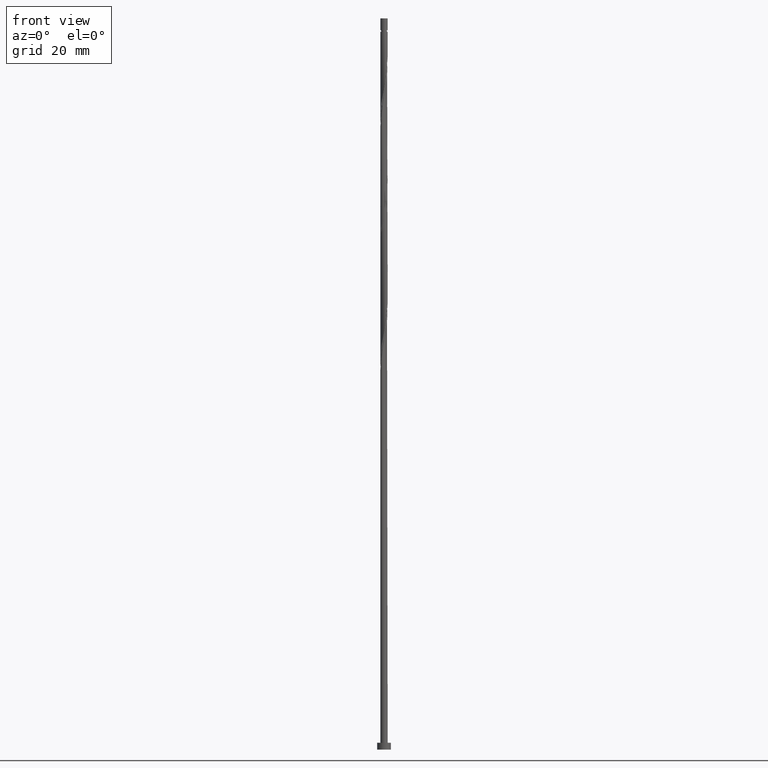
[diagram: clean part render]
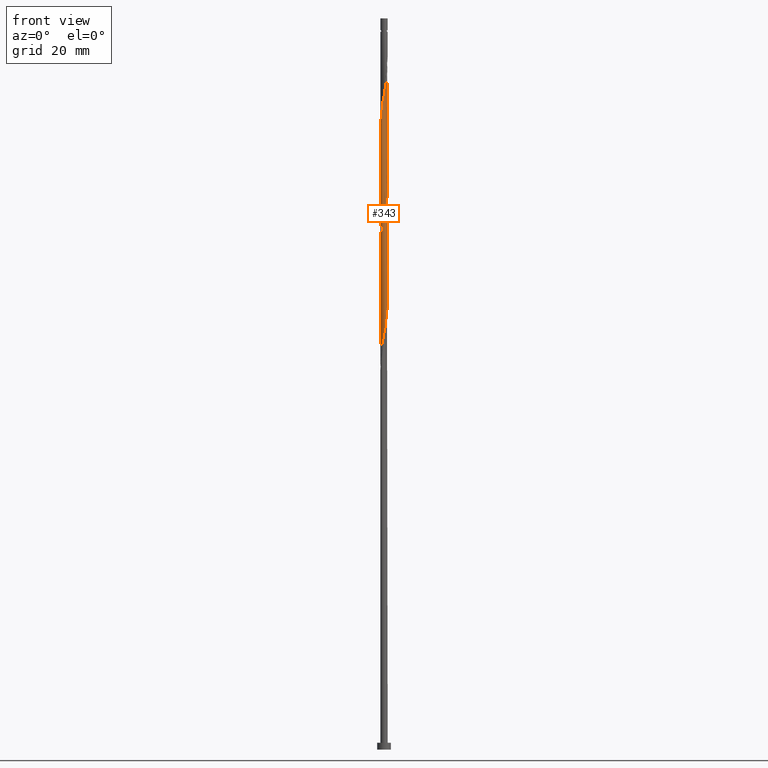
[diagram: same view with one face highlighted and labeled with its STEP entity id]
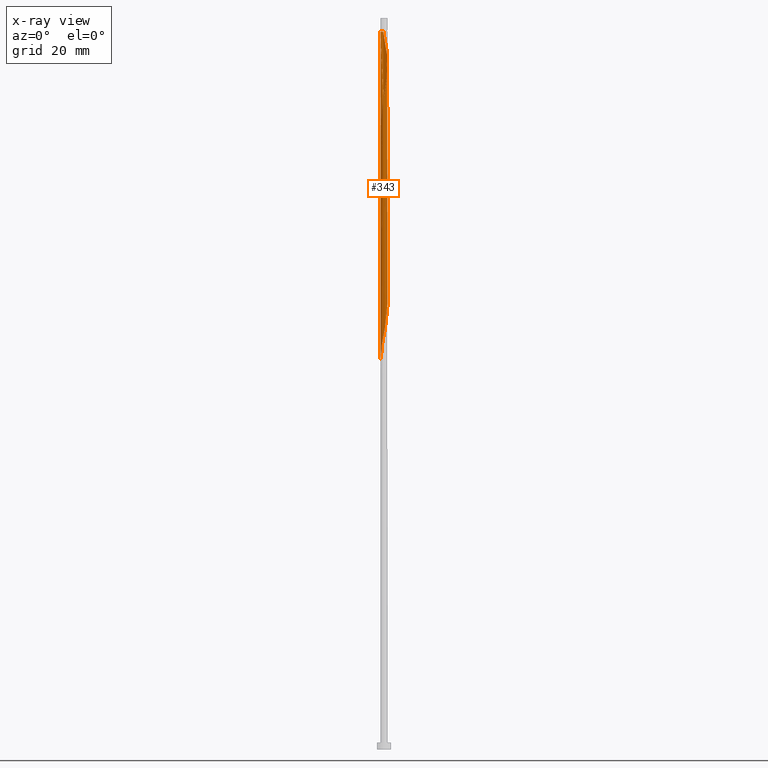
[diagram: x-ray of the same camera — body ghosted, the highlighted face saturated]
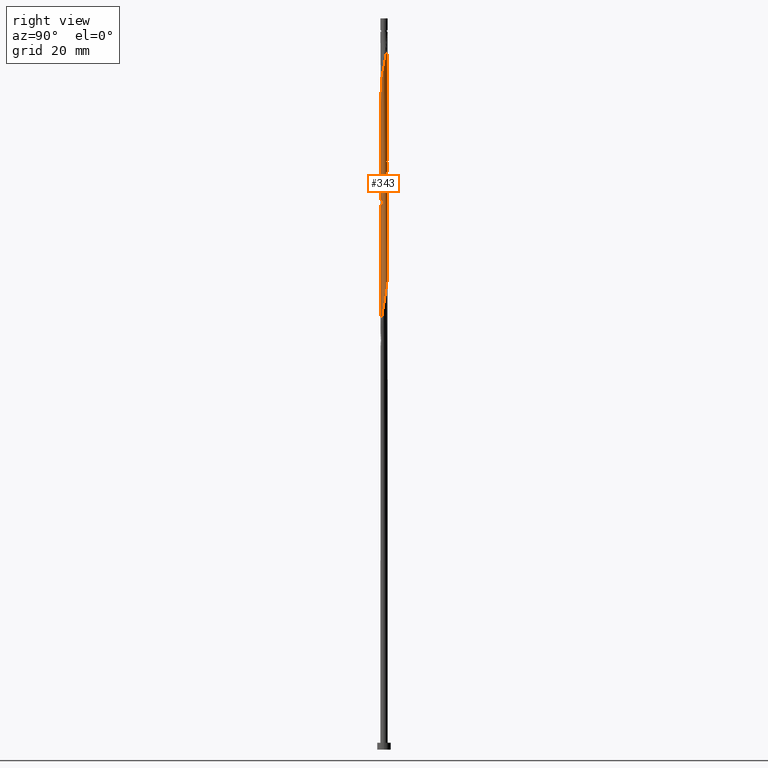
[diagram: same view with one face highlighted and labeled with its STEP entity id]
A machine part, front view. The second image highlights one B-rep face of the part: STEP entity #343.
The next image is the same camera in x-ray: the body ghosted, the highlighted face saturated — about 0% of this face is hidden behind the body in this view.
A second angle (right view) of the same face is appended — the face is thin or edge-on in the first view.
In plain terms, the highlighted cylindrical surface (bore or boss wall) has radius 0.8 mm, axis along (-0, -0, -1).
Its self-contained STEP definition (entity closure, byte-faithful):
#5 = CARTESIAN_POINT ( 'NONE',  ( 0.6967601788265364027, -0.3930970022801176800, 147.3917169308544715 ) ) ;
#41 = CIRCLE ( 'NONE', #417, 0.7999999999999928280 ) ;
#48 = LINE ( 'NONE', #526, #264 ) ;
#60 = ORIENTED_EDGE ( 'NONE', *, *, #1017, .F. ) ;
#70 = CARTESIAN_POINT ( 'NONE',  ( -0.7533637742433275664, 0.2691524171503026919, 109.8159593550969078 ) ) ;
#80 = CARTESIAN_POINT ( 'NONE',  ( 0.1591979899370601914, 0.7840000000000009184, 103.7553532944908596 ) ) ;
#90 = CARTESIAN_POINT ( 'NONE',  ( 0.2899365294310144447, -0.7456117011565069896, 92.84626238539993892 ) ) ;
#98 = CARTESIAN_POINT ( 'NONE',  ( -0.6402413624641632994, -0.4932759921154294402, 87.39171693085447146 ) ) ;
#101 = CARTESIAN_POINT ( 'NONE',  ( -0.5577882723393637887, -0.5734738383227867553, 114.6644442035817519 ) ) ;
#110 = CARTESIAN_POINT ( 'NONE',  ( -0.6967601788265365137, -0.3930970022801176245, 113.4523229914605338 ) ) ;
#116 = CARTESIAN_POINT ( 'NONE',  ( 0.5793709997158974501, 0.5635241355040887523, 152.8462623853999389 ) ) ;
#159 = DIRECTION ( 'NONE',  ( -0.000000000000000000, -0.000000000000000000, -1.000000000000000000 ) ) ;
#188 = CARTESIAN_POINT ( 'NONE',  ( -0.06812897180552061893, 0.7970937480627513505, 131.6341411732787208 ) ) ;
#191 = CARTESIAN_POINT ( 'NONE',  ( -0.6470182492983653777, 0.4704969554363558903, 108.6038381429756612 ) ) ;
#202 = CARTESIAN_POINT ( 'NONE',  ( 0.7532789951889101721, 0.2929180124448052536, 99.51292905206659611 ) ) ;
#211 = CARTESIAN_POINT ( 'NONE',  ( -0.7146654988808337494, 0.3774697753686226398, 109.2098987490362845 ) ) ;
#214 = EDGE_CURVE ( 'NONE', #1133, #1045, #48, .T. ) ;
#220 = CARTESIAN_POINT ( 'NONE',  ( -0.5793709997158973390, 0.5635241355040891964, 107.9977775369150947 ) ) ;
#228 = CARTESIAN_POINT ( 'NONE',  ( 0.6967601788265362917, 0.3930970022801176800, 100.1189896581272052 ) ) ;
#235 = CARTESIAN_POINT ( 'NONE',  ( 0.3971393078059867743, 0.7039251215880925061, 154.0583835975211286 ) ) ;
#236 = CARTESIAN_POINT ( 'NONE',  ( -0.3971393078059871629, -0.7039251215880923951, 140.7250502641877858 ) ) ;
#239 = CARTESIAN_POINT ( 'NONE',  ( 0.8000000000000011546, 0.09162314190809839332, 125.0907677267630334 ) ) ;
#246 = CARTESIAN_POINT ( 'NONE',  ( -0.5793709997158972280, -0.5635241355040891964, 139.5129290520666245 ) ) ;
#256 = CARTESIAN_POINT ( 'NONE',  ( 0.8000000000000011546, 8.600171904510130128E-16, 124.6048077737917339 ) ) ;
#259 = CARTESIAN_POINT ( 'NONE',  ( 0.1827337510560421152, 0.7872982807249216952, 155.2705048096423468 ) ) ;
#264 = VECTOR ( 'NONE', #885, 1000.000000000000000 ) ;
#284 = CARTESIAN_POINT ( 'NONE',  ( 0.1591979899370601914, 0.7840000000000009184, 130.4220199611574742 ) ) ;
#286 = EDGE_CURVE ( 'NONE', #1133, #574, #41, .T. ) ;
#308 = DIRECTION ( 'NONE',  ( -0.000000000000000000, -0.000000000000000000, -1.000000000000000000 ) ) ;
#311 = CARTESIAN_POINT ( 'NONE',  ( -0.1827337510560420875, 0.7872982807249219173, 105.5735351126726869 ) ) ;
#323 = CARTESIAN_POINT ( 'NONE',  ( -0.4882551537609421399, 0.6337246285460906847, 107.3917169308544715 ) ) ;
#330 = CARTESIAN_POINT ( 'NONE',  ( 0.04647580744500075939, -0.8068892154005803397, 143.1492926884302790 ) ) ;
#332 = CARTESIAN_POINT ( 'NONE',  ( -0.7920620496058212723, -0.1608350589319827439, 137.0886866278242167 ) ) ;
#337 = CARTESIAN_POINT ( 'NONE',  ( 0.1591979899370598583, -0.7840000000000009184, 143.7553532944908739 ) ) ;
#342 = ORIENTED_EDGE ( 'NONE', *, *, #1017, .T. ) ;
#343 = ADVANCED_FACE ( 'NONE', ( #1337 ), #1451, .T. ) ;
#346 = CARTESIAN_POINT ( 'NONE',  ( -0.3971393078059871073, 0.7039251215880925061, 133.4523229914605054 ) ) ;
#348 = CARTESIAN_POINT ( 'NONE',  ( 0.6402413624641630774, -0.4932759921154296623, 146.7856563247938766 ) ) ;
#349 = CARTESIAN_POINT ( 'NONE',  ( 0.04647580744500075245, 0.8068892154005805617, 104.3614139005514403 ) ) ;
#350 = VECTOR ( 'NONE', #159, 1000.000000000000000 ) ;
#358 = CARTESIAN_POINT ( 'NONE',  ( 0.5577882723393635667, -0.5734738383227868663, 146.1795957187332817 ) ) ;
#360 = CARTESIAN_POINT ( 'NONE',  ( 0.6967601788265362917, 0.3930970022801176800, 126.7856563247938482 ) ) ;
#371 = CARTESIAN_POINT ( 'NONE',  ( 0.6470182492983657108, 0.4704969554363555018, 152.2402017793394009 ) ) ;
#372 = CARTESIAN_POINT ( 'NONE',  ( 0.5577882723393635667, 0.5734738383227868663, 127.9977775369151090 ) ) ;
#417 = AXIS2_PLACEMENT_3D ( 'NONE', #1468, #1014, #551 ) ;
#428 = CARTESIAN_POINT ( 'NONE',  ( 0.7533637742433274553, -0.2691524171503027474, 123.1492926884302364 ) ) ;
#433 = CARTESIAN_POINT ( 'NONE',  ( -0.5577882723393637887, -0.5734738383227867553, 87.99777753691509474 ) ) ;
#435 = EDGE_CURVE ( 'NONE', #1045, #837, #929, .T. ) ;
#436 = EDGE_LOOP ( 'NONE', ( #1106, #1101, #1428, #898, #901, #60, #342, #794 ) ) ;
#437 = CARTESIAN_POINT ( 'NONE',  ( 0.5793709997158973390, -0.5635241355040890854, 94.66444420358173772 ) ) ;
#443 = CARTESIAN_POINT ( 'NONE',  ( -0.8000000000000011546, -0.09162314190809864312, 85.09076772676303335 ) ) ;
#444 = CARTESIAN_POINT ( 'NONE',  ( -0.7920620496058214943, 0.1608350589319828550, 137.0886866278241598 ) ) ;
#449 = CARTESIAN_POINT ( 'NONE',  ( 0.8052904436461328919, 0.06882955745640002843, 98.30080783994537796 ) ) ;
#455 = CARTESIAN_POINT ( 'NONE',  ( -0.8000000000000013767, -0.02302042121905792382, 136.3613301532415392 ) ) ;
#457 = CARTESIAN_POINT ( 'NONE',  ( -0.4753351822145642225, -0.6536716845301440149, 115.2705048096423468 ) ) ;
#459 = CARTESIAN_POINT ( 'NONE',  ( -0.8000000000000011546, -1.121761552762192498E-17, 136.2392321485232856 ) ) ;
#464 = CARTESIAN_POINT ( 'NONE',  ( -0.7533637742433275664, 0.2691524171503026919, 136.4826260217635365 ) ) ;
#466 = CARTESIAN_POINT ( 'NONE',  ( -0.8052904436461328919, -0.06882955745640030598, 111.6341411732787066 ) ) ;
#467 = CARTESIAN_POINT ( 'NONE',  ( 0.7792847194175214209, 0.1808737849506026618, 125.5735351126726300 ) ) ;
#488 = CARTESIAN_POINT ( 'NONE',  ( 0.7920620496058212723, 0.1608350589319826329, 150.4220199611575310 ) ) ;
#489 = CARTESIAN_POINT ( 'NONE',  ( 0.06812897180552067444, 0.7970937480627510174, 155.8765654157029132 ) ) ;
#526 = CARTESIAN_POINT ( 'NONE',  ( -0.8000000000000000444, 0.000000000000000000, 160.0000000000000000 ) ) ;
#542 = CARTESIAN_POINT ( 'NONE',  ( -0.7532789951889099500, -0.2929180124448056421, 86.17959571873326752 ) ) ;
#551 = DIRECTION ( 'NONE',  ( -1.000000000000000000, 0.000000000000000000, 0.000000000000000000 ) ) ;
#555 = CARTESIAN_POINT ( 'NONE',  ( 0.2719201724291194222, 0.7611107845994217191, 103.1492926884302221 ) ) ;
#562 = CARTESIAN_POINT ( 'NONE',  ( -0.7986762466259770266, 0.04600275073779136470, 137.6947472338847831 ) ) ;
#566 = CARTESIAN_POINT ( 'NONE',  ( 0.7792847194175214209, 0.1808737849506026618, 98.90686844600600125 ) ) ;
#574 = VERTEX_POINT ( 'NONE', #734 ) ;
#575 = CARTESIAN_POINT ( 'NONE',  ( 0.1827337510560422262, -0.7872982807249219173, 92.24020177933932985 ) ) ;
#586 = CARTESIAN_POINT ( 'NONE',  ( -0.7920620496058214943, 0.1608350589319828550, 110.4220199611575310 ) ) ;
#593 = CARTESIAN_POINT ( 'NONE',  ( -0.3971393078059871073, 0.7039251215880925061, 106.7856563247938624 ) ) ;
#646 = CARTESIAN_POINT ( 'NONE',  ( -0.8000000000000012657, 8.974092422097527659E-17, 137.9381411071250625 ) ) ;
#658 = CARTESIAN_POINT ( 'NONE',  ( -0.6967601788265365137, -0.3930970022801176245, 86.78565632479387659 ) ) ;
#666 = CARTESIAN_POINT ( 'NONE',  ( -0.8000000000000010436, -1.028281423365341519E-15, 84.60480777379174810 ) ) ;
#673 = CARTESIAN_POINT ( 'NONE',  ( -0.4753351822145642225, -0.6536716845301440149, 88.60383814297570382 ) ) ;
#677 = CARTESIAN_POINT ( 'NONE',  ( 0.6402413624641628553, 0.4932759921154297733, 100.7250502641878001 ) ) ;
#686 = CARTESIAN_POINT ( 'NONE',  ( 0.6470182492983653777, -0.4704969554363558348, 95.27050480964237522 ) ) ;
#694 = CARTESIAN_POINT ( 'NONE',  ( -0.04647580744500095368, -0.8068892154005806727, 91.02808056721812591 ) ) ;
#708 = CARTESIAN_POINT ( 'NONE',  ( -0.6470182492983654887, -0.4704969554363557238, 138.9068684460060012 ) ) ;
#715 = CARTESIAN_POINT ( 'NONE',  ( 0.2899365294310144447, 0.7456117011565067676, 154.6644442035817804 ) ) ;
#725 = CARTESIAN_POINT ( 'NONE',  ( -0.2899365294310145558, -0.7456117011565067676, 141.3311108702483807 ) ) ;
#732 = CARTESIAN_POINT ( 'NONE',  ( 0.6402413624641628553, 0.4932759921154297733, 127.3917169308544999 ) ) ;
#734 = CARTESIAN_POINT ( 'NONE',  ( -0.1591979899370811746, 0.7840000000002138592, 157.0886866278241882 ) ) ;
#737 = EDGE_CURVE ( 'NONE', #1247, #574, #1094, .T. ) ;
#740 = CARTESIAN_POINT ( 'NONE',  ( -0.1591979899370811746, 0.7840000000002138592, 157.0886866278241882 ) ) ;
#762 = LINE ( 'NONE', #1225, #350 ) ;
#782 = CARTESIAN_POINT ( 'NONE',  ( -0.1827337510560420875, 0.7872982807249219173, 132.2402017793393441 ) ) ;
#785 = CARTESIAN_POINT ( 'NONE',  ( 0.1827337510560422262, -0.7872982807249219173, 118.9068684460060155 ) ) ;
#794 = ORIENTED_EDGE ( 'NONE', *, *, #435, .F. ) ;
#796 = CARTESIAN_POINT ( 'NONE',  ( 0.4882551537609420844, -0.6337246285460907957, 94.05838359752115707 ) ) ;
#801 = CARTESIAN_POINT ( 'NONE',  ( 0.2719201724291190891, -0.7611107845994218302, 144.3614139005514971 ) ) ;
#803 = CARTESIAN_POINT ( 'NONE',  ( 0.5577882723393635667, 0.5734738383227868663, 101.3311108702484091 ) ) ;
#810 = CARTESIAN_POINT ( 'NONE',  ( 0.3736276773218415448, -0.7073912345647829225, 144.9674745066120352 ) ) ;
#814 = CARTESIAN_POINT ( 'NONE',  ( 0.7146654988808337494, -0.3774697753686226398, 122.5432320823696415 ) ) ;
#820 = CARTESIAN_POINT ( 'NONE',  ( -0.8000000000000012657, 8.974092422097527659E-17, 137.9381411071250625 ) ) ;
#822 = CARTESIAN_POINT ( 'NONE',  ( 0.7986762466259769155, 0.04600275073779119817, 149.8159593550969362 ) ) ;
#824 = CARTESIAN_POINT ( 'NONE',  ( -0.7146654988808335274, -0.3774697753686225288, 138.3008078399453780 ) ) ;
#826 = CARTESIAN_POINT ( 'NONE',  ( 0.4753351822145642780, 0.6536716845301440149, 101.9371714763090324 ) ) ;
#828 = CARTESIAN_POINT ( 'NONE',  ( -0.8000000000000011546, -1.121761552762192344E-17, 136.2392321485232856 ) ) ;
#833 = CARTESIAN_POINT ( 'NONE',  ( 0.7532789951889101721, -0.2929180124448055311, 147.9977775369150947 ) ) ;
#834 = CARTESIAN_POINT ( 'NONE',  ( -0.4882551537609420844, -0.6337246285460906847, 140.1189896581272194 ) ) ;
#837 = VERTEX_POINT ( 'NONE', #256 ) ;
#855 = CARTESIAN_POINT ( 'NONE',  ( -0.04647580744500064143, 0.8068892154005803397, 156.4826260217635649 ) ) ;
#885 = DIRECTION ( 'NONE',  ( -0.000000000000000000, -0.000000000000000000, -1.000000000000000000 ) ) ;
#898 = ORIENTED_EDGE ( 'NONE', *, *, #949, .T. ) ;
#901 = ORIENTED_EDGE ( 'NONE', *, *, #1483, .F. ) ;
#911 = CARTESIAN_POINT ( 'NONE',  ( -0.2719201724291193112, -0.7611107845994217191, 89.81595935509690776 ) ) ;
#912 = CARTESIAN_POINT ( 'NONE',  ( -0.5793709997158973390, 0.5635241355040891964, 134.6644442035817519 ) ) ;
#914 = CARTESIAN_POINT ( 'NONE',  ( 0.8000000000000012657, -0.02302042121905791688, 124.4827097690735371 ) ) ;
#920 = CARTESIAN_POINT ( 'NONE',  ( -0.06812897180552060505, -0.7970937480627510174, 142.5432320823696273 ) ) ;
#929 =( BOUNDED_CURVE ( )  B_SPLINE_CURVE ( 2, ( #820, #931, #562, #444, #464, #1042, #941, #912, #1408, #346, #1529, #782, #188, #1229, #284, #1470, #1237, #1349, #372, #732, #360, #1420, #467, #239, #1180 ),
 .UNSPECIFIED., .F., .T. ) 
 B_SPLINE_CURVE_WITH_KNOTS ( ( 3, 2, 2, 2, 2, 2, 2, 2, 2, 2, 2, 2, 3 ),
 ( 0.4295252162417511621, 0.4318181818181818232, 0.4431818181818181768, 0.4545454545454545303, 0.4659090909090908839, 0.4772727272727272929, 0.4886363636363636465, 0.5000000000000000000, 0.5113636363636363535, 0.5227272727272727071, 0.5340909090909090606, 0.5454545454545454142, 0.5545252162417512176 ),
 .UNSPECIFIED. ) 
 CURVE ( )  GEOMETRIC_REPRESENTATION_ITEM ( )  RATIONAL_B_SPLINE_CURVE ( ( 0.9061101570135927652, 0.9072237824201749845, 0.9090909090909526924, 0.8998376744372547087, 0.9090909090909526924, 0.8998376744372547087, 0.9090909090909526924, 0.8998376744372547087, 0.9090909090909526924, 0.8998376744372547087, 0.9090909090909526924, 0.8998376744372547087, 0.9090909090909526924, 0.8998376744372547087, 0.9090909090909526924, 0.8998376744372547087, 0.9090909090909526924, 0.8998376744372547087, 0.9090909090909526924, 0.8998376744372547087, 0.9090909090909526924, 0.8998376744372547087, 0.9090909090909526924, 0.9017048011080323056, 0.9061101570135929872 ) ) 
 REPRESENTATION_ITEM ( '' )  );
#931 = CARTESIAN_POINT ( 'NONE',  ( -0.8000000000000013767, 0.02302042121905666441, 137.8160431024068373 ) ) ;
#935 = CARTESIAN_POINT ( 'NONE',  ( 0.7146654988808337494, -0.3774697753686226398, 95.87656541570295587 ) ) ;
#941 = CARTESIAN_POINT ( 'NONE',  ( -0.6470182492983653777, 0.4704969554363558903, 135.2705048096423752 ) ) ;
#945 = CARTESIAN_POINT ( 'NONE',  ( -0.2899365294310144447, 0.7456117011565069896, 106.1795957187332817 ) ) ;
#949 = EDGE_CURVE ( 'NONE', #1247, #1238, #1141, .T. ) ;
#959 = CARTESIAN_POINT ( 'NONE',  ( 0.8052904436461325588, -0.06882955745640031986, 149.2098987490363697 ) ) ;
#1006 = VERTEX_POINT ( 'NONE', #1353 ) ;
#1014 = DIRECTION ( 'NONE',  ( -0.000000000000000000, -0.000000000000000000, -1.000000000000000000 ) ) ;
#1017 = EDGE_CURVE ( 'NONE', #1006, #837, #762, .T. ) ;
#1023 = CARTESIAN_POINT ( 'NONE',  ( 0.000000000000000000, 0.000000000000000000, 160.0000000000000000 ) ) ;
#1026 = CARTESIAN_POINT ( 'NONE',  ( 0.06812897180552041076, -0.7970937480627513505, 118.3008078399453780 ) ) ;
#1035 = CARTESIAN_POINT ( 'NONE',  ( 0.7920620496058214943, -0.1608350589319829382, 97.08868662782420245 ) ) ;
#1041 = CARTESIAN_POINT ( 'NONE',  ( -0.1591979899370601081, -0.7840000000000009184, 90.42201996115748841 ) ) ;
#1042 = CARTESIAN_POINT ( 'NONE',  ( -0.7146654988808337494, 0.3774697753686226398, 135.8765654157029701 ) ) ;
#1045 = VERTEX_POINT ( 'NONE', #646 ) ;
#1046 = CARTESIAN_POINT ( 'NONE',  ( -0.06812897180552061893, 0.7970937480627513505, 104.9674745066120636 ) ) ;
#1053 = CARTESIAN_POINT ( 'NONE',  ( -0.1827337510560419487, -0.7872982807249219173, 141.9371714763090040 ) ) ;
#1057 = CARTESIAN_POINT ( 'NONE',  ( 0.7986762466259770266, -0.04600275073779146878, 97.69474723388478310 ) ) ;
#1065 = CARTESIAN_POINT ( 'NONE',  ( 0.6470182492983653777, -0.4704969554363558348, 121.9371714763090466 ) ) ;
#1073 = CARTESIAN_POINT ( 'NONE',  ( 0.7533637742433275664, 0.2691524171503024143, 151.0280805672181259 ) ) ;
#1094 =( BOUNDED_CURVE ( )  B_SPLINE_CURVE ( 2, ( #459, #455, #1385, #332, #1541, #824, #708, #246, #834, #236, #725, #1053, #920, #330, #337, #801, #810, #1279, #358, #348, #5, #833, #1185, #959, #822, #488, #1073, #1425, #371, #116, #1532, #235, #715, #259, #489, #855, #740 ),
 .UNSPECIFIED., .F., .T. ) 
 B_SPLINE_CURVE_WITH_KNOTS ( ( 3, 2, 2, 2, 2, 2, 2, 2, 2, 2, 2, 2, 2, 2, 2, 2, 2, 2, 3 ),
 ( 0.5545252162417513286, 0.5568181818181818787, 0.5681818181818181213, 0.5795454545454545858, 0.5909090909090908283, 0.6022727272727272929, 0.6136363636363636465, 0.6250000000000000000, 0.6363636363636363535, 0.6477272727272727071, 0.6590909090909091717, 0.6704545454545454142, 0.6818181818181818787, 0.6931818181818181213, 0.7045454545454545858, 0.7159090909090908283, 0.7272727272727272929, 0.7386363636363636465, 0.7500000000000000000 ),
 .UNSPECIFIED. ) 
 CURVE ( )  GEOMETRIC_REPRESENTATION_ITEM ( )  RATIONAL_B_SPLINE_CURVE ( ( 0.9061101570135916550, 0.9072237824201738743, 0.9090909090909515822, 0.8998376744372534874, 0.9090909090909515822, 0.8998376744372534874, 0.9090909090909515822, 0.8998376744372534874, 0.9090909090909515822, 0.8998376744372534874, 0.9090909090909515822, 0.8998376744372534874, 0.9090909090909515822, 0.8998376744372534874, 0.9090909090909515822, 0.8998376744372534874, 0.9090909090909515822, 0.8998376744372534874, 0.9090909090909515822, 0.8998376744372534874, 0.9090909090909515822, 0.8998376744372534874, 0.9090909090909515822, 0.8998376744372534874, 0.9090909090909515822, 0.8998376744372534874, 0.9090909090909515822, 0.8998376744372534874, 0.9090909090909515822, 0.8998376744372534874, 0.9090909090909515822, 0.8998376744372534874, 0.9090909090909515822, 0.8998376744372534874, 0.9090909090909515822, 0.8998376744372534874, 0.9090909090909515822 ) ) 
 REPRESENTATION_ITEM ( '' )  );
#1101 = ORIENTED_EDGE ( 'NONE', *, *, #286, .T. ) ;
#1106 = ORIENTED_EDGE ( 'NONE', *, *, #214, .F. ) ;
#1133 = VERTEX_POINT ( 'NONE', #1342 ) ;
#1140 = CARTESIAN_POINT ( 'NONE',  ( 0.7920620496058214943, -0.1608350589319829382, 123.7553532944908312 ) ) ;
#1141 = LINE ( 'NONE', #1231, #1510 ) ;
#1148 = CARTESIAN_POINT ( 'NONE',  ( 0.7986762466259770266, -0.04600275073779146878, 124.3614139005514403 ) ) ;
#1157 = CARTESIAN_POINT ( 'NONE',  ( 0.3971393078059869963, -0.7039251215880925061, 93.45232299146056221 ) ) ;
#1165 = CARTESIAN_POINT ( 'NONE',  ( -0.6402413624641632994, -0.4932759921154294402, 114.0583835975211713 ) ) ;
#1173 = CARTESIAN_POINT ( 'NONE',  ( 0.4882551537609420844, -0.6337246285460907957, 120.7250502641878427 ) ) ;
#1180 = CARTESIAN_POINT ( 'NONE',  ( 0.8000000000000010436, 8.600171904510130128E-16, 124.6048077737917339 ) ) ;
#1185 = CARTESIAN_POINT ( 'NONE',  ( 0.7792847194175213099, -0.1808737849506029394, 148.6038381429756612 ) ) ;
#1217 = DIRECTION ( 'NONE',  ( -1.000000000000000000, 0.000000000000000000, 0.000000000000000000 ) ) ;
#1225 = CARTESIAN_POINT ( 'NONE',  ( 0.8000000000000000444, 9.797174393178826150E-17, 160.0000000000000000 ) ) ;
#1229 = CARTESIAN_POINT ( 'NONE',  ( 0.04647580744500075245, 0.8068892154005805617, 131.0280805672181259 ) ) ;
#1231 = CARTESIAN_POINT ( 'NONE',  ( -0.8000000000000000444, 0.000000000000000000, 160.0000000000000000 ) ) ;
#1237 = CARTESIAN_POINT ( 'NONE',  ( 0.3736276773218417668, 0.7073912345647829225, 129.2098987490362845 ) ) ;
#1238 = VERTEX_POINT ( 'NONE', #1499 ) ;
#1247 = VERTEX_POINT ( 'NONE', #828 ) ;
#1252 = CARTESIAN_POINT ( 'NONE',  ( -0.7792847194175214209, -0.1808737849506028839, 85.57353511267264423 ) ) ;
#1256 = CARTESIAN_POINT ( 'NONE',  ( 0.3736276773218417668, 0.7073912345647829225, 102.5432320823696273 ) ) ;
#1265 = CARTESIAN_POINT ( 'NONE',  ( -0.7792847194175214209, -0.1808737849506028839, 112.2402017793393298 ) ) ;
#1271 = CARTESIAN_POINT ( 'NONE',  ( 0.06812897180552041076, -0.7970937480627513505, 91.63414117327870656 ) ) ;
#1279 = CARTESIAN_POINT ( 'NONE',  ( 0.4753351822145643890, -0.6536716845301440149, 145.5735351126727153 ) ) ;
#1284 = CARTESIAN_POINT ( 'NONE',  ( -0.3736276773218417113, -0.7073912345647829225, 115.8765654157029559 ) ) ;
#1291 = CARTESIAN_POINT ( 'NONE',  ( 0.8000000000000010436, 8.600171904510130128E-16, 124.6048077737917339 ) ) ;
#1337 = FACE_OUTER_BOUND ( 'NONE', #436, .T. ) ;
#1342 = CARTESIAN_POINT ( 'NONE',  ( -0.7999999999999928280, 0.000000000000000000, 157.0886866278241882 ) ) ;
#1349 = CARTESIAN_POINT ( 'NONE',  ( 0.4753351822145642780, 0.6536716845301440149, 128.6038381429757180 ) ) ;
#1353 = CARTESIAN_POINT ( 'NONE',  ( 0.8000000000000000444, 9.797174393178826150E-17, 157.0886866278241882 ) ) ;
#1367 = CARTESIAN_POINT ( 'NONE',  ( 0.3971393078059869963, -0.7039251215880925061, 120.1189896581272194 ) ) ;
#1368 = DIRECTION ( 'NONE',  ( -0.000000000000000000, -0.000000000000000000, -1.000000000000000000 ) ) ;
#1373 = CARTESIAN_POINT ( 'NONE',  ( -0.3736276773218417113, -0.7073912345647829225, 89.20989874903631289 ) ) ;
#1378 = CARTESIAN_POINT ( 'NONE',  ( -0.2719201724291193112, -0.7611107845994217191, 116.4826260217635792 ) ) ;
#1385 = CARTESIAN_POINT ( 'NONE',  ( -0.7986762466259769155, -0.04600275073779128143, 136.4826260217635649 ) ) ;
#1387 = CARTESIAN_POINT ( 'NONE',  ( 0.5793709997158973390, -0.5635241355040890854, 121.3311108702484091 ) ) ;
#1394 = CARTESIAN_POINT ( 'NONE',  ( -0.1591979899370601081, -0.7840000000000009184, 117.0886866278241456 ) ) ;
#1402 = CARTESIAN_POINT ( 'NONE',  ( -0.7986762466259770266, 0.04600275073779136470, 111.0280805672181401 ) ) ;
#1408 = CARTESIAN_POINT ( 'NONE',  ( -0.4882551537609421399, 0.6337246285460906847, 134.0583835975211571 ) ) ;
#1420 = CARTESIAN_POINT ( 'NONE',  ( 0.7532789951889101721, 0.2929180124448052536, 126.1795957187332675 ) ) ;
#1425 = CARTESIAN_POINT ( 'NONE',  ( 0.7146654988808338604, 0.3774697753686223622, 151.6341411732787208 ) ) ;
#1428 = ORIENTED_EDGE ( 'NONE', *, *, #737, .F. ) ;
#1443 =( BOUNDED_CURVE ( )  B_SPLINE_CURVE ( 2, ( #1291, #914, #1148, #1140, #428, #814, #1065, #1387, #1173, #1367, #1524, #785, #1026, #1490, #1394, #1378, #1284, #457, #101, #1165, #110, #1507, #1265, #466, #1402, #586, #70, #211, #191, #220, #323, #593, #945, #311, #1046, #349, #80, #555, #1256, #826, #803, #677, #228, #202, #566, #449, #1057, #1035, #1498, #935, #686, #437, #796, #1157, #90, #575, #1271, #694, #1041, #911, #1373, #673, #433, #98, #658, #542, #1252, #443, #666 ),
 .UNSPECIFIED., .F., .T. ) 
 B_SPLINE_CURVE_WITH_KNOTS ( ( 3, 2, 2, 2, 2, 2, 2, 2, 2, 2, 2, 2, 2, 2, 2, 2, 2, 2, 2, 2, 2, 2, 2, 2, 2, 2, 2, 2, 2, 2, 2, 2, 2, 2, 3 ),
 ( 0.5545252162417512176, 0.5568181818181817677, 0.5681818181818182323, 0.5795454545454545858, 0.5909090909090909394, 0.6022727272727272929, 0.6136363636363636465, 0.6250000000000000000, 0.6363636363636363535, 0.6477272727272727071, 0.6590909090909090606, 0.6704545454545454142, 0.6818181818181817677, 0.6931818181818182323, 0.7045454545454545858, 0.7159090909090909394, 0.7272727272727272929, 0.7386363636363636465, 0.7500000000000000000, 0.7613636363636363535, 0.7727272727272727071, 0.7840909090909090606, 0.7954545454545454142, 0.8068181818181817677, 0.8181818181818182323, 0.8295454545454545858, 0.8409090909090909394, 0.8522727272727272929, 0.8636363636363636465, 0.8750000000000000000, 0.8863636363636363535, 0.8977272727272727071, 0.9090909090909090606, 0.9204545454545454142, 0.9295252162417512176 ),
 .UNSPECIFIED. ) 
 CURVE ( )  GEOMETRIC_REPRESENTATION_ITEM ( )  RATIONAL_B_SPLINE_CURVE ( ( 0.9061101570135929872, 0.9072237824201750955, 0.9090909090909526924, 0.8998376744372547087, 0.9090909090909526924, 0.8998376744372547087, 0.9090909090909526924, 0.8998376744372547087, 0.9090909090909526924, 0.8998376744372547087, 0.9090909090909526924, 0.8998376744372547087, 0.9090909090909526924, 0.8998376744372547087, 0.9090909090909526924, 0.8998376744372547087, 0.9090909090909526924, 0.8998376744372547087, 0.9090909090909526924, 0.8998376744372547087, 0.9090909090909526924, 0.8998376744372547087, 0.9090909090909526924, 0.8998376744372547087, 0.9090909090909526924, 0.8998376744372547087, 0.9090909090909526924, 0.8998376744372547087, 0.9090909090909526924, 0.8998376744372547087, 0.9090909090909526924, 0.8998376744372547087, 0.9090909090909526924, 0.8998376744372547087, 0.9090909090909526924, 0.8998376744372547087, 0.9090909090909526924, 0.8998376744372547087, 0.9090909090909526924, 0.8998376744372547087, 0.9090909090909526924, 0.8998376744372547087, 0.9090909090909526924, 0.8998376744372547087, 0.9090909090909526924, 0.8998376744372547087, 0.9090909090909526924, 0.8998376744372547087, 0.9090909090909526924, 0.8998376744372547087, 0.9090909090909526924, 0.8998376744372547087, 0.9090909090909526924, 0.8998376744372547087, 0.9090909090909526924, 0.8998376744372547087, 0.9090909090909526924, 0.8998376744372547087, 0.9090909090909526924, 0.8998376744372547087, 0.9090909090909526924, 0.8998376744372547087, 0.9090909090909526924, 0.8998376744372547087, 0.9090909090909526924, 0.8998376744372547087, 0.9090909090909526924, 0.9017048011080323056, 0.9061101570135929872 ) ) 
 REPRESENTATION_ITEM ( '' )  );
#1451 = CYLINDRICAL_SURFACE ( 'NONE', #1479, 0.8000000000000000444 ) ;
#1468 = CARTESIAN_POINT ( 'NONE',  ( 0.000000000000000000, 0.000000000000000000, 157.0886866278241882 ) ) ;
#1470 = CARTESIAN_POINT ( 'NONE',  ( 0.2719201724291194222, 0.7611107845994217191, 129.8159593550969078 ) ) ;
#1479 = AXIS2_PLACEMENT_3D ( 'NONE', #1023, #308, #1217 ) ;
#1483 = EDGE_CURVE ( 'NONE', #837, #1238, #1443, .T. ) ;
#1490 = CARTESIAN_POINT ( 'NONE',  ( -0.04647580744500095368, -0.8068892154005806727, 117.6947472338847689 ) ) ;
#1498 = CARTESIAN_POINT ( 'NONE',  ( 0.7533637742433274553, -0.2691524171503027474, 96.48262602176357916 ) ) ;
#1499 = CARTESIAN_POINT ( 'NONE',  ( -0.8000000000000011546, -1.028281423365341717E-15, 84.60480777379174810 ) ) ;
#1507 = CARTESIAN_POINT ( 'NONE',  ( -0.7532789951889099500, -0.2929180124448056421, 112.8462623853999247 ) ) ;
#1510 = VECTOR ( 'NONE', #1368, 1000.000000000000000 ) ;
#1524 = CARTESIAN_POINT ( 'NONE',  ( 0.2899365294310144447, -0.7456117011565069896, 119.5129290520666387 ) ) ;
#1529 = CARTESIAN_POINT ( 'NONE',  ( -0.2899365294310144447, 0.7456117011565069896, 132.8462623853999673 ) ) ;
#1532 = CARTESIAN_POINT ( 'NONE',  ( 0.4882551537609419179, 0.6337246285460907957, 153.4523229914605338 ) ) ;
#1541 = CARTESIAN_POINT ( 'NONE',  ( -0.7533637742433275664, -0.2691524171503025253, 137.6947472338848399 ) ) ;